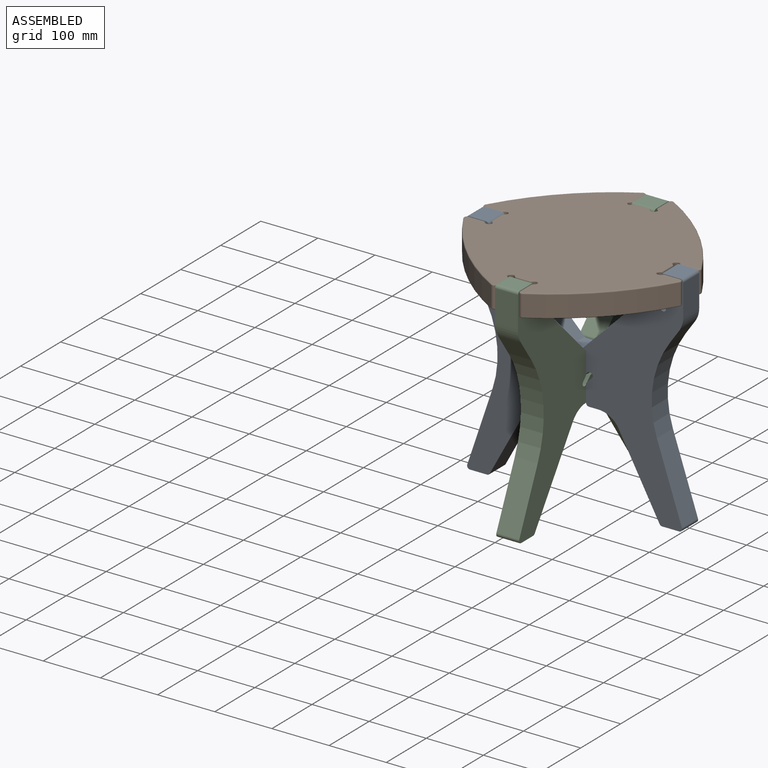
[diagram: assembled view]
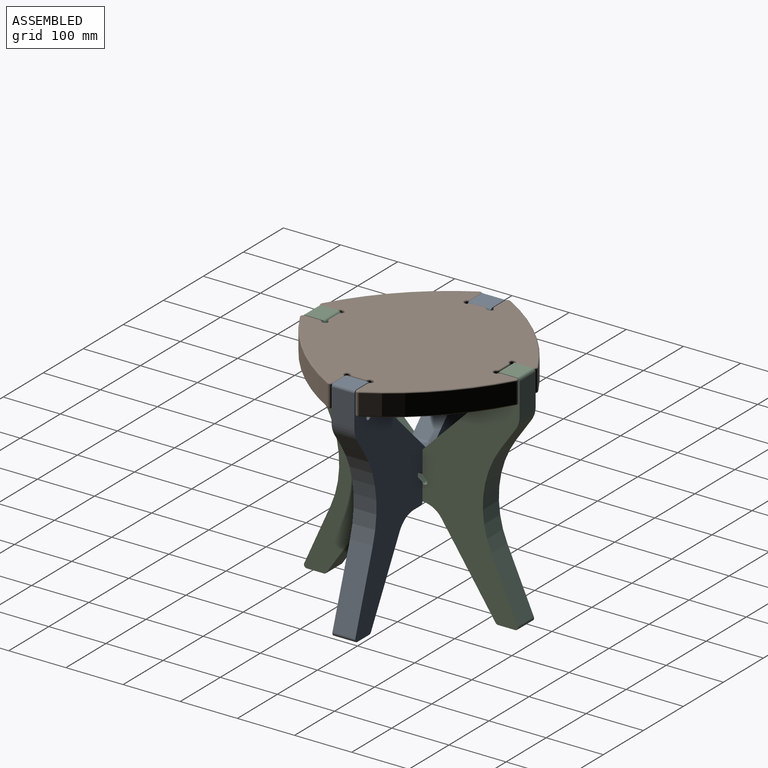
[diagram: assembled view, second angle]
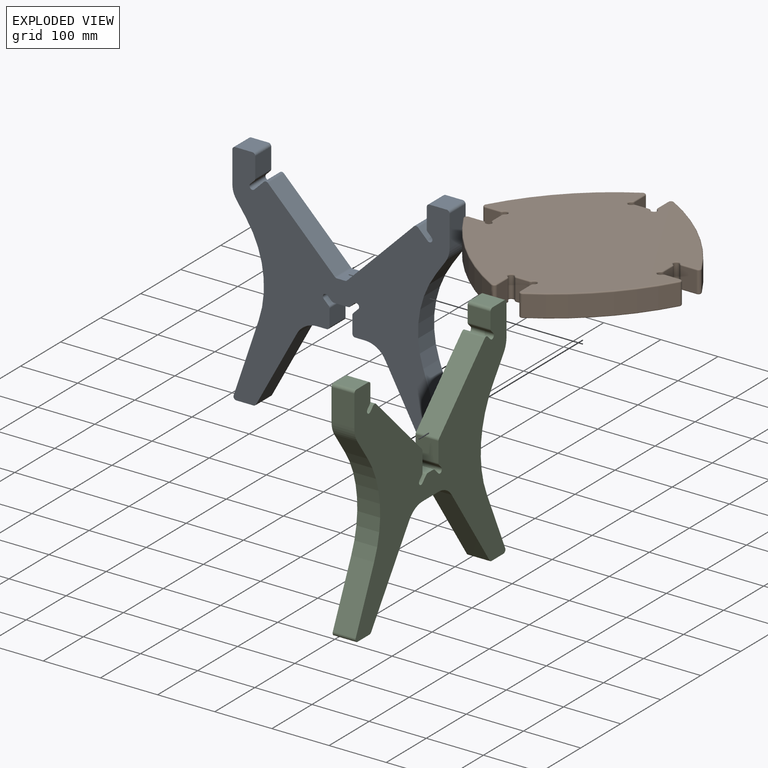
[diagram: exploded view]
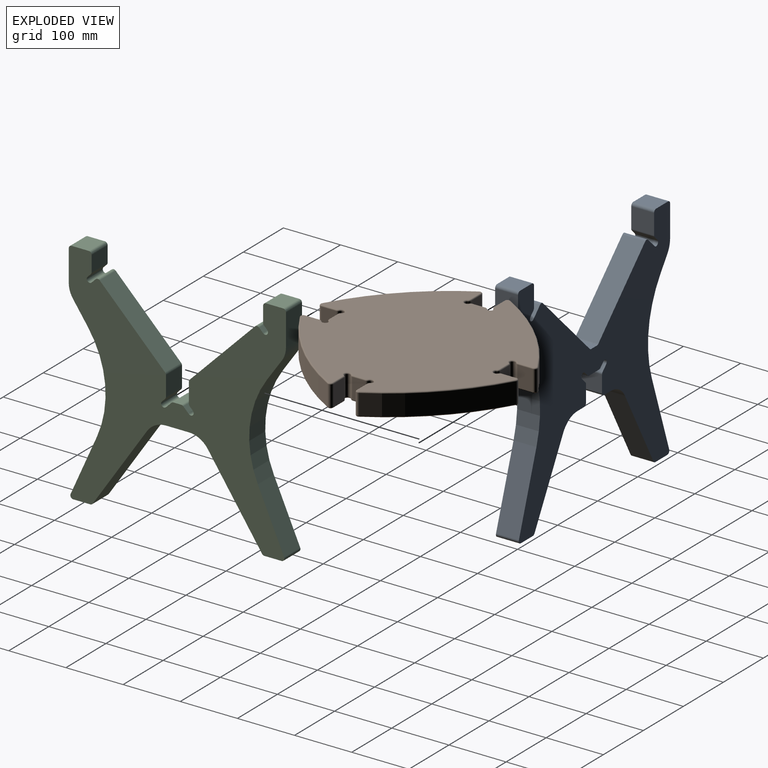
[diagram: exploded view, second angle]
ASSEMBLY  parts=3 mates=6
PART A: 62 faces, bbox 380x40x400 mm
  f0: plane 40x35.4mm, normal (1,0,0), area 1415.8mm2, adj f1,f30,f31,f32
  f1: cylinder r=5mm len=40mm, axis (0,1,0), area 314.2mm2, adj f0,f2,f31,f32
  f2: plane 40x30mm, normal (0,0,1), area 1200mm2, adj f1,f3,f31,f32
  f3: cylinder r=5mm len=40mm, axis (0,1,0), area 314.2mm2, adj f2,f4,f31,f32
  f4: plane 55x40mm, normal (-1,0,0), area 2200mm2, adj f3,f5,f31,f32
  f5: cylinder r=40mm len=40mm, axis (0,1,0), area 977.4mm2, adj f4,f6,f31,f32
  f6: plane 40x23.17mm, normal (-0.82,0,-0.57), area 1131.5mm2, adj f5,f7,f31,f32
  f7: cylinder r=175.73mm len=156.78mm, axis (0,1,0), area 6572.8mm2, adj f6,f8,f31,f32
  f8: plane 130.52x43.87mm, normal (-0.95,0,0.32), area 5507.7mm2, adj f7,f9,f31,f32
  f9: cylinder r=5mm len=40mm, axis (0,1,0), area 379mm2, adj f8,f10,f31,f32
  f10: plane 40x30mm, normal (0,0,-1), area 1200mm2, adj f9,f11,f31,f32
  f11: cylinder r=5mm len=40mm, axis (0,1,0), area 214.4mm2, adj f10,f12,f31,f32
  f12: plane 131.53x71.64mm, normal (0.88,0,-0.48), area 5990.9mm2, adj f11,f13,f31,f32
  f13: cylinder r=40mm len=40mm, axis (0,1,0), area 1715.2mm2, adj f12,f14,f31,f32
  f14: plane 40x16.88mm, normal (0,0,-1), area 675.4mm2, adj f13,f15,f31,f32
  f15: cylinder r=5mm len=40mm, axis (0,1,0), area 314.2mm2, adj f14,f16,f31,f32
  f16: plane 40x29.19mm, normal (1,0,0), area 1167.6mm2, adj f15,f17,f31,f32
  f17: cylinder r=5mm len=40mm, axis (0,1,0), area 157.1mm2, adj f16,f18,f31,f32
  f18: plane 40x8.74mm, normal (0.71,0,0.71), area 494.3mm2, adj f17,f19,f31,f32
  f19: cylinder r=5mm len=40mm, axis (0,1,0), area 628.3mm2, adj f18,f20,f31,f32
  f20: plane 40x7.07mm, normal (-0.71,0,-0.71), area 400mm2, adj f19,f21,f31,f32
  f21: cylinder r=5mm len=40mm, axis (0,1,0), area 157.1mm2, adj f20,f22,f31,f32
  f22: plane 40x25.05mm, normal (0,0,-1), area 1002mm2, adj f21,f31,f32,f54
  f23: plane 40x14.36mm, normal (0,0,1), area 574.3mm2, adj f24,f31,f32,f55
  f24: cylinder r=5mm len=40mm, axis (0,1,0), area 157.1mm2, adj f23,f25,f31,f32
  f25: plane 117.07x117.07mm, normal (0.71,0,0.71), area 6622.5mm2, adj f24,f26,f31,f32
  f26: cylinder r=5mm len=40mm, axis (0,1,0), area 314.2mm2, adj f25,f27,f31,f32
  f27: plane 40x16.61mm, normal (-0.71,0,0.71), area 939.5mm2, adj f26,f28,f31,f32
  f28: cylinder r=5mm len=40mm, axis (0,1,0), area 628.3mm2, adj f27,f29,f31,f32
  f29: plane 40x7.07mm, normal (0.71,0,-0.71), area 400mm2, adj f28,f30,f31,f32
  f30: cylinder r=5mm len=40mm, axis (0,1,0), area 157.1mm2, adj f0,f29,f31,f32
  f31: plane 400x380mm, normal (0,-1,0), area 65409.3mm2, adj f0,f1,f2,f3,f4,f5,f6,f7
  f32: plane 400x380mm, normal (0,1,0), area 65409.3mm2, adj f0,f1,f2,f3,f4,f5,f6,f7
  f33: plane 40x35.4mm, normal (-1,0,0), area 1415.8mm2, adj f31,f32,f34,f61
  f34: cylinder r=5mm len=40mm, axis (0,1,0), area 314.2mm2, adj f31,f32,f33,f35
  f35: plane 40x30mm, normal (0,0,1), area 1200mm2, adj f31,f32,f34,f36
  f36: cylinder r=5mm len=40mm, axis (0,1,0), area 314.2mm2, adj f31,f32,f35,f37
  f37: plane 55x40mm, normal (1,0,0), area 2200mm2, adj f31,f32,f36,f38
  f38: cylinder r=40mm len=40mm, axis (0,1,0), area 977.4mm2, adj f31,f32,f37,f39
  f39: plane 40x23.17mm, normal (0.82,0,-0.57), area 1131.5mm2, adj f31,f32,f38,f40
  f40: cylinder r=175.73mm len=156.78mm, axis (0,1,0), area 6572.8mm2, adj f31,f32,f39,f41
  f41: plane 130.52x43.87mm, normal (0.95,0,0.32), area 5507.7mm2, adj f31,f32,f40,f42
  f42: cylinder r=5mm len=40mm, axis (0,1,0), area 379mm2, adj f31,f32,f41,f43
  f43: plane 40x30mm, normal (0,0,-1), area 1200mm2, adj f31,f32,f42,f44
  f44: cylinder r=5mm len=40mm, axis (0,1,0), area 214.4mm2, adj f31,f32,f43,f45
  f45: plane 131.53x71.64mm, normal (-0.88,0,-0.48), area 5990.9mm2, adj f31,f32,f44,f46
  f46: cylinder r=40mm len=40mm, axis (0,1,0), area 1715.2mm2, adj f31,f32,f45,f47
  f47: plane 40x16.88mm, normal (0,0,-1), area 675.4mm2, adj f31,f32,f46,f48
  f48: cylinder r=5mm len=40mm, axis (0,1,0), area 314.2mm2, adj f31,f32,f47,f49
  f49: plane 40x29.19mm, normal (-1,0,0), area 1167.6mm2, adj f31,f32,f48,f50
  f50: cylinder r=5mm len=40mm, axis (0,1,0), area 157.1mm2, adj f31,f32,f49,f51
  f51: plane 40x8.74mm, normal (-0.71,0,0.71), area 494.3mm2, adj f31,f32,f50,f52
  f52: cylinder r=5mm len=40mm, axis (0,1,0), area 628.3mm2, adj f31,f32,f51,f53
  f53: plane 40x7.07mm, normal (0.71,0,-0.71), area 400mm2, adj f31,f32,f52,f54
  f54: cylinder r=5mm len=40mm, axis (0,1,0), area 157.1mm2, adj f22,f31,f32,f53
  f55: cylinder r=5mm len=40mm, axis (0,1,0), area 157.1mm2, adj f23,f31,f32,f56
  f56: plane 117.07x117.07mm, normal (-0.71,0,0.71), area 6622.5mm2, adj f31,f32,f55,f57
  f57: cylinder r=5mm len=40mm, axis (0,1,0), area 314.2mm2, adj f31,f32,f56,f58
  f58: plane 40x16.61mm, normal (0.71,0,0.71), area 939.5mm2, adj f31,f32,f57,f59
  f59: cylinder r=5mm len=40mm, axis (0,1,0), area 628.3mm2, adj f31,f32,f58,f60
  f60: plane 40x7.07mm, normal (-0.71,0,-0.71), area 400mm2, adj f31,f32,f59,f61
  f61: cylinder r=5mm len=40mm, axis (0,1,0), area 157.1mm2, adj f31,f32,f33,f60
PART B: 146 faces, bbox 439.8x439.8x40 mm
  f0: plane 36x22.68mm, normal (0,1,0), area 816.5mm2, adj f1,f26,f54,f99
  f1: cylinder r=5mm len=36mm, axis (0,0,-1), area 188.5mm2, adj f0,f2,f56,f101
  f2: cylinder r=5mm len=36mm, axis (0,0,-1), area 659.7mm2, adj f1,f3,f58,f103
  f3: cylinder r=5mm len=36mm, axis (0,0,-1), area 188.5mm2, adj f2,f4,f60,f105
  f4: plane 36x26.34mm, normal (1,0,0), area 948.2mm2, adj f3,f5,f62,f107
  f5: cylinder r=5mm len=36mm, axis (0,0,-1), area 375.1mm2, adj f4,f6,f64,f109
  f6: cylinder r=425.66mm len=161.9mm, axis (0,0,-1), area 8345.4mm2, adj f5,f7,f66,f111
  f7: cylinder r=5mm len=36mm, axis (0,0,-1), area 375.1mm2, adj f6,f8,f68,f113
  f8: plane 36x26.34mm, normal (0,-1,0), area 948.2mm2, adj f7,f9,f70,f115
  f9: cylinder r=5mm len=36mm, axis (0,0,-1), area 188.5mm2, adj f8,f10,f72,f117
  f10: cylinder r=5mm len=36mm, axis (0,0,-1), area 659.7mm2, adj f9,f11,f74,f119
  f11: cylinder r=5mm len=36mm, axis (0,0,-1), area 188.5mm2, adj f10,f12,f76,f121
  f12: plane 36x22.68mm, normal (-1,0,0), area 816.5mm2, adj f11,f39,f78,f123
  f13: plane 376x376mm, normal (0,0,1), area 90729.3mm2, adj f50,f51,f52,f53,f54,f55,f56,f57
  f14: plane 376x376mm, normal (0,0,-1), area 90729.3mm2, adj f98,f99,f100,f101,f102,f103,f104,f105
  f15: plane 36x22.68mm, normal (1,0,0), area 816.5mm2, adj f16,f38,f69,f120
  f16: cylinder r=5mm len=36mm, axis (0,0,-1), area 188.5mm2, adj f15,f17,f67,f118
  f17: cylinder r=5mm len=36mm, axis (0,0,-1), area 659.7mm2, adj f16,f18,f65,f116
  f18: cylinder r=5mm len=36mm, axis (0,0,-1), area 188.5mm2, adj f17,f19,f63,f114
  f19: plane 36x26.34mm, normal (0,-1,0), area 948.2mm2, adj f18,f20,f61,f112
  f20: cylinder r=5mm len=36mm, axis (0,0,-1), area 375.1mm2, adj f19,f21,f59,f110
  f21: cylinder r=425.66mm len=161.9mm, axis (0,0,-1), area 8345.4mm2, adj f20,f22,f57,f108
  f22: cylinder r=5mm len=36mm, axis (0,0,-1), area 375.1mm2, adj f21,f23,f55,f106
  f23: plane 36x26.34mm, normal (-1,0,0), area 948.2mm2, adj f22,f24,f53,f104
  f24: cylinder r=5mm len=36mm, axis (0,0,-1), area 188.5mm2, adj f23,f25,f51,f102
  f25: cylinder r=5mm len=36mm, axis (0,0,-1), area 659.7mm2, adj f24,f26,f50,f100
  f26: cylinder r=5mm len=36mm, axis (0,0,-1), area 188.5mm2, adj f0,f25,f52,f98
  f27: plane 36x22.68mm, normal (0,-1,0), area 816.5mm2, adj f28,f49,f93,f144
  f28: cylinder r=5mm len=36mm, axis (0,0,-1), area 188.5mm2, adj f27,f29,f91,f142
  f29: cylinder r=5mm len=36mm, axis (0,0,-1), area 659.7mm2, adj f28,f30,f89,f140
  f30: cylinder r=5mm len=36mm, axis (0,0,-1), area 188.5mm2, adj f29,f31,f87,f138
  f31: plane 36x26.34mm, normal (-1,0,0), area 948.2mm2, adj f30,f32,f85,f136
  f32: cylinder r=5mm len=36mm, axis (0,0,-1), area 375.1mm2, adj f31,f33,f83,f134
  f33: cylinder r=425.66mm len=161.9mm, axis (0,0,-1), area 8345.4mm2, adj f32,f34,f81,f132
  f34: cylinder r=5mm len=36mm, axis (0,0,-1), area 375.1mm2, adj f33,f35,f79,f130
  f35: plane 36x26.34mm, normal (0,1,0), area 948.2mm2, adj f34,f36,f77,f128
  f36: cylinder r=5mm len=36mm, axis (0,0,-1), area 188.5mm2, adj f35,f37,f75,f126
  f37: cylinder r=5mm len=36mm, axis (0,0,-1), area 659.7mm2, adj f36,f38,f73,f124
  f38: cylinder r=5mm len=36mm, axis (0,0,-1), area 188.5mm2, adj f15,f37,f71,f122
  f39: cylinder r=5mm len=36mm, axis (0,0,-1), area 188.5mm2, adj f12,f40,f80,f125
  f40: cylinder r=5mm len=36mm, axis (0,0,-1), area 659.7mm2, adj f39,f41,f82,f127
  f41: cylinder r=5mm len=36mm, axis (0,0,-1), area 188.5mm2, adj f40,f42,f84,f129
  f42: plane 36x26.34mm, normal (0,1,0), area 948.2mm2, adj f41,f43,f86,f131
  f43: cylinder r=5mm len=36mm, axis (0,0,-1), area 375.1mm2, adj f42,f44,f88,f133
  f44: cylinder r=425.66mm len=161.9mm, axis (0,0,-1), area 8345.4mm2, adj f43,f45,f90,f135
  f45: cylinder r=5mm len=36mm, axis (0,0,-1), area 375.1mm2, adj f44,f46,f92,f137
  f46: plane 36x26.34mm, normal (1,0,0), area 948.2mm2, adj f45,f47,f94,f139
  f47: cylinder r=5mm len=36mm, axis (0,0,-1), area 188.5mm2, adj f46,f48,f96,f141
  f48: cylinder r=5mm len=36mm, axis (0,0,-1), area 659.7mm2, adj f47,f49,f97,f143
  f49: cylinder r=5mm len=36mm, axis (0,0,-1), area 188.5mm2, adj f27,f48,f95,f145
  f50: torus R=7mm, axis (0,0,1), area 65.9mm2, adj f13,f25,f51,f52
  f51: torus R=3mm, axis (0,0,1), area 14.1mm2, adj f13,f24,f50,f53
  f52: torus R=3mm, axis (0,0,1), area 14.1mm2, adj f13,f26,f50,f54
  f53: cylinder r=2mm len=26.34mm, axis (0,1,0), area 82.7mm2, adj f13,f23,f51,f55
  f54: cylinder r=2mm len=22.68mm, axis (1,0,0), area 71.2mm2, adj f0,f13,f52,f56
  f55: torus R=3mm, axis (0,0,1), area 28mm2, adj f13,f22,f53,f57
  f56: torus R=3mm, axis (0,0,1), area 14.1mm2, adj f1,f13,f54,f58
  f57: torus R=423.66mm, axis (0,0,1), area 727mm2, adj f13,f21,f55,f59
  f58: torus R=7mm, axis (0,0,1), area 65.9mm2, adj f2,f13,f56,f60
  f59: torus R=3mm, axis (0,0,1), area 28mm2, adj f13,f20,f57,f61
  f60: torus R=3mm, axis (0,0,1), area 14.1mm2, adj f3,f13,f58,f62
  f61: cylinder r=2mm len=26.34mm, axis (-1,0,0), area 82.7mm2, adj f13,f19,f59,f63
  f62: cylinder r=2mm len=26.34mm, axis (0,-1,0), area 82.7mm2, adj f4,f13,f60,f64
  f63: torus R=3mm, axis (0,0,1), area 14.1mm2, adj f13,f18,f61,f65
  f64: torus R=3mm, axis (0,0,1), area 28mm2, adj f5,f13,f62,f66
  f65: torus R=7mm, axis (0,0,1), area 65.9mm2, adj f13,f17,f63,f67
  f66: torus R=423.66mm, axis (0,0,1), area 727mm2, adj f6,f13,f64,f68
  f67: torus R=3mm, axis (0,0,1), area 14.1mm2, adj f13,f16,f65,f69
  f68: torus R=3mm, axis (0,0,1), area 28mm2, adj f7,f13,f66,f70
  f69: cylinder r=2mm len=22.68mm, axis (0,-1,0), area 71.2mm2, adj f13,f15,f67,f71
  f70: cylinder r=2mm len=26.34mm, axis (-1,0,0), area 82.7mm2, adj f8,f13,f68,f72
  f71: torus R=3mm, axis (0,0,1), area 14.1mm2, adj f13,f38,f69,f73
  f72: torus R=3mm, axis (0,0,1), area 14.1mm2, adj f9,f13,f70,f74
  f73: torus R=7mm, axis (0,0,1), area 65.9mm2, adj f13,f37,f71,f75
  f74: torus R=7mm, axis (0,0,1), area 65.9mm2, adj f10,f13,f72,f76
  f75: torus R=3mm, axis (0,0,1), area 14.1mm2, adj f13,f36,f73,f77
  f76: torus R=3mm, axis (0,0,1), area 14.1mm2, adj f11,f13,f74,f78
  f77: cylinder r=2mm len=26.34mm, axis (1,0,0), area 82.7mm2, adj f13,f35,f75,f79
  f78: cylinder r=2mm len=22.68mm, axis (0,1,0), area 71.2mm2, adj f12,f13,f76,f80
  f79: torus R=3mm, axis (0,0,1), area 28mm2, adj f13,f34,f77,f81
  f80: torus R=3mm, axis (0,0,1), area 14.1mm2, adj f13,f39,f78,f82
  f81: torus R=423.66mm, axis (0,0,1), area 727mm2, adj f13,f33,f79,f83
  f82: torus R=7mm, axis (0,0,1), area 65.9mm2, adj f13,f40,f80,f84
  f83: torus R=3mm, axis (0,0,1), area 28mm2, adj f13,f32,f81,f85
  f84: torus R=3mm, axis (0,0,1), area 14.1mm2, adj f13,f41,f82,f86
  f85: cylinder r=2mm len=26.34mm, axis (0,1,0), area 82.7mm2, adj f13,f31,f83,f87
  f86: cylinder r=2mm len=26.34mm, axis (1,0,0), area 82.7mm2, adj f13,f42,f84,f88
  f87: torus R=3mm, axis (0,0,1), area 14.1mm2, adj f13,f30,f85,f89
  f88: torus R=3mm, axis (0,0,1), area 28mm2, adj f13,f43,f86,f90
  f89: torus R=7mm, axis (0,0,1), area 65.9mm2, adj f13,f29,f87,f91
  f90: torus R=423.66mm, axis (0,0,1), area 727mm2, adj f13,f44,f88,f92
  f91: torus R=3mm, axis (0,0,1), area 14.1mm2, adj f13,f28,f89,f93
  f92: torus R=3mm, axis (0,0,1), area 28mm2, adj f13,f45,f90,f94
  f93: cylinder r=2mm len=22.68mm, axis (-1,0,0), area 71.2mm2, adj f13,f27,f91,f95
  f94: cylinder r=2mm len=26.34mm, axis (0,-1,0), area 82.7mm2, adj f13,f46,f92,f96
  f95: torus R=3mm, axis (0,0,1), area 14.1mm2, adj f13,f49,f93,f97
  f96: torus R=3mm, axis (0,0,1), area 14.1mm2, adj f13,f47,f94,f97
  f97: torus R=7mm, axis (0,0,1), area 65.9mm2, adj f13,f48,f95,f96
  f98: torus R=3mm, axis (0,0,1), area 14.1mm2, adj f14,f26,f99,f100
  f99: cylinder r=2mm len=22.68mm, axis (-1,0,0), area 71.2mm2, adj f0,f14,f98,f101
  f100: torus R=7mm, axis (0,0,1), area 65.9mm2, adj f14,f25,f98,f102
  f101: torus R=3mm, axis (0,0,1), area 14.1mm2, adj f1,f14,f99,f103
  f102: torus R=3mm, axis (0,0,1), area 14.1mm2, adj f14,f24,f100,f104
  f103: torus R=7mm, axis (0,0,1), area 65.9mm2, adj f2,f14,f101,f105
  f104: cylinder r=2mm len=26.34mm, axis (0,-1,0), area 82.7mm2, adj f14,f23,f102,f106
  f105: torus R=3mm, axis (0,0,1), area 14.1mm2, adj f3,f14,f103,f107
  f106: torus R=3mm, axis (0,0,1), area 28mm2, adj f14,f22,f104,f108
  f107: cylinder r=2mm len=26.34mm, axis (0,1,0), area 82.7mm2, adj f4,f14,f105,f109
  f108: torus R=423.66mm, axis (0,0,1), area 727mm2, adj f14,f21,f106,f110
  f109: torus R=3mm, axis (0,0,1), area 28mm2, adj f5,f14,f107,f111
  f110: torus R=3mm, axis (0,0,1), area 28mm2, adj f14,f20,f108,f112
  f111: torus R=423.66mm, axis (0,0,1), area 727mm2, adj f6,f14,f109,f113
  f112: cylinder r=2mm len=26.34mm, axis (1,0,0), area 82.7mm2, adj f14,f19,f110,f114
  f113: torus R=3mm, axis (0,0,1), area 28mm2, adj f7,f14,f111,f115
  f114: torus R=3mm, axis (0,0,1), area 14.1mm2, adj f14,f18,f112,f116
  f115: cylinder r=2mm len=26.34mm, axis (1,0,0), area 82.7mm2, adj f8,f14,f113,f117
  f116: torus R=7mm, axis (0,0,1), area 65.9mm2, adj f14,f17,f114,f118
  f117: torus R=3mm, axis (0,0,1), area 14.1mm2, adj f9,f14,f115,f119
  f118: torus R=3mm, axis (0,0,1), area 14.1mm2, adj f14,f16,f116,f120
  f119: torus R=7mm, axis (0,0,1), area 65.9mm2, adj f10,f14,f117,f121
  f120: cylinder r=2mm len=22.68mm, axis (0,1,0), area 71.2mm2, adj f14,f15,f118,f122
  f121: torus R=3mm, axis (0,0,1), area 14.1mm2, adj f11,f14,f119,f123
  f122: torus R=3mm, axis (0,0,1), area 14.1mm2, adj f14,f38,f120,f124
  f123: cylinder r=2mm len=22.68mm, axis (0,-1,0), area 71.2mm2, adj f12,f14,f121,f125
  f124: torus R=7mm, axis (0,0,1), area 65.9mm2, adj f14,f37,f122,f126
  f125: torus R=3mm, axis (0,0,1), area 14.1mm2, adj f14,f39,f123,f127
  f126: torus R=3mm, axis (0,0,1), area 14.1mm2, adj f14,f36,f124,f128
  f127: torus R=7mm, axis (0,0,1), area 65.9mm2, adj f14,f40,f125,f129
  f128: cylinder r=2mm len=26.34mm, axis (-1,0,0), area 82.7mm2, adj f14,f35,f126,f130
  f129: torus R=3mm, axis (0,0,1), area 14.1mm2, adj f14,f41,f127,f131
  f130: torus R=3mm, axis (0,0,1), area 28mm2, adj f14,f34,f128,f132
  f131: cylinder r=2mm len=26.34mm, axis (-1,0,0), area 82.7mm2, adj f14,f42,f129,f133
  f132: torus R=423.66mm, axis (0,0,1), area 727mm2, adj f14,f33,f130,f134
  f133: torus R=3mm, axis (0,0,1), area 28mm2, adj f14,f43,f131,f135
  f134: torus R=3mm, axis (0,0,1), area 28mm2, adj f14,f32,f132,f136
  f135: torus R=423.66mm, axis (0,0,1), area 727mm2, adj f14,f44,f133,f137
  f136: cylinder r=2mm len=26.34mm, axis (0,-1,0), area 82.7mm2, adj f14,f31,f134,f138
  f137: torus R=3mm, axis (0,0,1), area 28mm2, adj f14,f45,f135,f139
  f138: torus R=3mm, axis (0,0,1), area 14.1mm2, adj f14,f30,f136,f140
  f139: cylinder r=2mm len=26.34mm, axis (0,1,0), area 82.7mm2, adj f14,f46,f137,f141
  f140: torus R=7mm, axis (0,0,1), area 65.9mm2, adj f14,f29,f138,f142
  f141: torus R=3mm, axis (0,0,1), area 14.1mm2, adj f14,f47,f139,f143
  f142: torus R=3mm, axis (0,0,1), area 14.1mm2, adj f14,f28,f140,f144
  f143: torus R=7mm, axis (0,0,1), area 65.9mm2, adj f14,f48,f141,f145
  f144: cylinder r=2mm len=22.68mm, axis (1,0,0), area 71.2mm2, adj f14,f27,f142,f145
  f145: torus R=3mm, axis (0,0,1), area 14.1mm2, adj f14,f49,f143,f144
PART C: 58 faces, bbox 380x40x400 mm
  f0: plane 40x27.32mm, normal (1,0,0), area 1092.9mm2, adj f1,f28,f29,f30
  f1: cylinder r=5mm len=40mm, axis (0,1,0), area 314.2mm2, adj f0,f2,f29,f30
  f2: plane 40x30mm, normal (0,0,1), area 1200mm2, adj f1,f3,f29,f30
  f3: cylinder r=5mm len=40mm, axis (0,1,0), area 314.2mm2, adj f2,f4,f29,f30
  f4: plane 55x40mm, normal (-1,0,0), area 2200mm2, adj f3,f5,f29,f30
  f5: cylinder r=40mm len=40mm, axis (0,1,0), area 973.2mm2, adj f4,f6,f29,f30
  f6: plane 40x37.65mm, normal (-0.82,0,-0.57), area 1835.1mm2, adj f5,f7,f29,f30
  f7: cylinder r=172.85mm len=169.41mm, axis (0,1,0), area 7116.1mm2, adj f6,f8,f29,f30
  f8: plane 103.04x46.14mm, normal (-0.91,0,0.41), area 4516mm2, adj f7,f9,f29,f30
  f9: cylinder r=5mm len=40mm, axis (0,1,0), area 398.4mm2, adj f8,f10,f29,f30
  f10: plane 40x30mm, normal (0,0,-1), area 1200mm2, adj f9,f11,f29,f30
  f11: cylinder r=5mm len=40mm, axis (0,1,0), area 195.1mm2, adj f10,f12,f29,f30
  f12: plane 140.24x95.03mm, normal (0.83,0,-0.56), area 6776.3mm2, adj f11,f13,f29,f30
  f13: cylinder r=40mm len=40mm, axis (0,1,0), area 1560.4mm2, adj f12,f14,f29,f30
  f14: plane 40x40mm, normal (0,0,-1), area 1600mm2, adj f13,f29,f30,f44
  f15: plane 40x13.81mm, normal (0,0,1), area 552.4mm2, adj f16,f29,f30,f45
  f16: cylinder r=5mm len=40mm, axis (0,1,0), area 157.1mm2, adj f15,f17,f29,f30
  f17: plane 40x9.56mm, normal (-0.71,0,0.71), area 540.8mm2, adj f16,f18,f29,f30
  f18: cylinder r=5mm len=40mm, axis (0,1,0), area 628.3mm2, adj f17,f19,f29,f30
  f19: plane 40x5.61mm, normal (0.71,0,-0.71), area 317.2mm2, adj f18,f20,f29,f30
  f20: cylinder r=5mm len=40mm, axis (0,1,0), area 157.1mm2, adj f19,f21,f29,f30
  f21: plane 40x34.81mm, normal (1,0,0), area 1392.4mm2, adj f20,f22,f29,f30
  f22: cylinder r=5mm len=40mm, axis (0,1,0), area 156.6mm2, adj f21,f23,f29,f30
  f23: plane 115x114.39mm, normal (0.71,0,0.71), area 6488.2mm2, adj f22,f24,f29,f30
  f24: cylinder r=5mm len=40mm, axis (0,1,0), area 314.7mm2, adj f23,f25,f29,f30
  f25: plane 40x7.07mm, normal (-0.71,0,0.71), area 400mm2, adj f24,f26,f29,f30
  f26: cylinder r=5mm len=40mm, axis (0,1,0), area 628.3mm2, adj f25,f27,f29,f30
  f27: plane 40x5.61mm, normal (0.71,0,-0.71), area 317.2mm2, adj f26,f28,f29,f30
  f28: cylinder r=5mm len=40mm, axis (0,1,0), area 157.1mm2, adj f0,f27,f29,f30
  f29: plane 400x380mm, normal (0,-1,0), area 62542.6mm2, adj f0,f1,f2,f3,f4,f5,f6,f7
  f30: plane 400x380mm, normal (0,1,0), area 62542.6mm2, adj f0,f1,f2,f3,f4,f5,f6,f7
  f31: plane 40x27.32mm, normal (-1,0,0), area 1092.9mm2, adj f29,f30,f32,f57
  f32: cylinder r=5mm len=40mm, axis (0,1,0), area 314.2mm2, adj f29,f30,f31,f33
  f33: plane 40x30mm, normal (0,0,1), area 1200mm2, adj f29,f30,f32,f34
  f34: cylinder r=5mm len=40mm, axis (0,1,0), area 314.2mm2, adj f29,f30,f33,f35
  f35: plane 55x40mm, normal (1,0,0), area 2200mm2, adj f29,f30,f34,f36
  f36: cylinder r=40mm len=40mm, axis (0,1,0), area 973.2mm2, adj f29,f30,f35,f37
  f37: plane 40x37.65mm, normal (0.82,0,-0.57), area 1835.1mm2, adj f29,f30,f36,f38
  f38: cylinder r=172.85mm len=169.41mm, axis (0,1,0), area 7116.1mm2, adj f29,f30,f37,f39
  f39: plane 103.04x46.14mm, normal (0.91,0,0.41), area 4516mm2, adj f29,f30,f38,f40
  f40: cylinder r=5mm len=40mm, axis (0,1,0), area 398.4mm2, adj f29,f30,f39,f41
  f41: plane 40x30mm, normal (0,0,-1), area 1200mm2, adj f29,f30,f40,f42
  f42: cylinder r=5mm len=40mm, axis (0,1,0), area 195.1mm2, adj f29,f30,f41,f43
  f43: plane 140.24x95.03mm, normal (-0.83,0,-0.56), area 6776.3mm2, adj f29,f30,f42,f44
  f44: cylinder r=40mm len=40mm, axis (0,1,0), area 1560.4mm2, adj f14,f29,f30,f43
  f45: cylinder r=5mm len=40mm, axis (0,1,0), area 157.1mm2, adj f15,f29,f30,f46
  f46: plane 40x9.56mm, normal (0.71,0,0.71), area 540.8mm2, adj f29,f30,f45,f47
  f47: cylinder r=5mm len=40mm, axis (0,1,0), area 628.3mm2, adj f29,f30,f46,f48
  f48: plane 40x5.61mm, normal (-0.71,0,-0.71), area 317.2mm2, adj f29,f30,f47,f49
  f49: cylinder r=5mm len=40mm, axis (0,1,0), area 157.1mm2, adj f29,f30,f48,f50
  f50: plane 40x34.81mm, normal (-1,0,0), area 1392.4mm2, adj f29,f30,f49,f51
  f51: cylinder r=5mm len=40mm, axis (0,1,0), area 156.6mm2, adj f29,f30,f50,f52
  f52: plane 115x114.39mm, normal (-0.71,0,0.71), area 6488.2mm2, adj f29,f30,f51,f53
  f53: cylinder r=5mm len=40mm, axis (0,1,0), area 314.7mm2, adj f29,f30,f52,f54
  f54: plane 40x7.07mm, normal (0.71,0,0.71), area 400mm2, adj f29,f30,f53,f55
  f55: cylinder r=5mm len=40mm, axis (0,1,0), area 628.3mm2, adj f29,f30,f54,f56
  f56: plane 40x5.61mm, normal (-0.71,0,-0.71), area 317.2mm2, adj f29,f30,f55,f57
  f57: cylinder r=5mm len=40mm, axis (0,1,0), area 157.1mm2, adj f29,f30,f31,f56
PLACE A t=(-375.87,-15.46,-243.5)mm
PLACE B rot(axis=(0,0,1),180deg) t=(-375.87,-15.46,116.5)mm
PLACE C rot(axis=(0,0,-1),90deg) t=(-375.87,-15.46,-243.5)mm
MATE planar A.f33 <-> B.f12  axis (-1,0,0) through (-225.87,-15.46,133.81)mm
MATE planar C.f31 <-> B.f0  axis (0,1,0) through (-375.87,-165.46,137.84)mm
MATE planar C.f30 <-> B.f4  axis (1,0,0) through (-355.87,-42.53,-47.45)mm
MATE planar A.f35 <-> B.f13  axis (0,0,1) through (-205.87,-15.46,156.5)mm
MATE planar A.f32 <-> B.f42  axis (0,1,0) through (-193.11,4.54,73.56)mm
MATE planar C.f33 <-> B.f13  axis (0,0,1) through (-375.87,-185.46,156.5)mm
